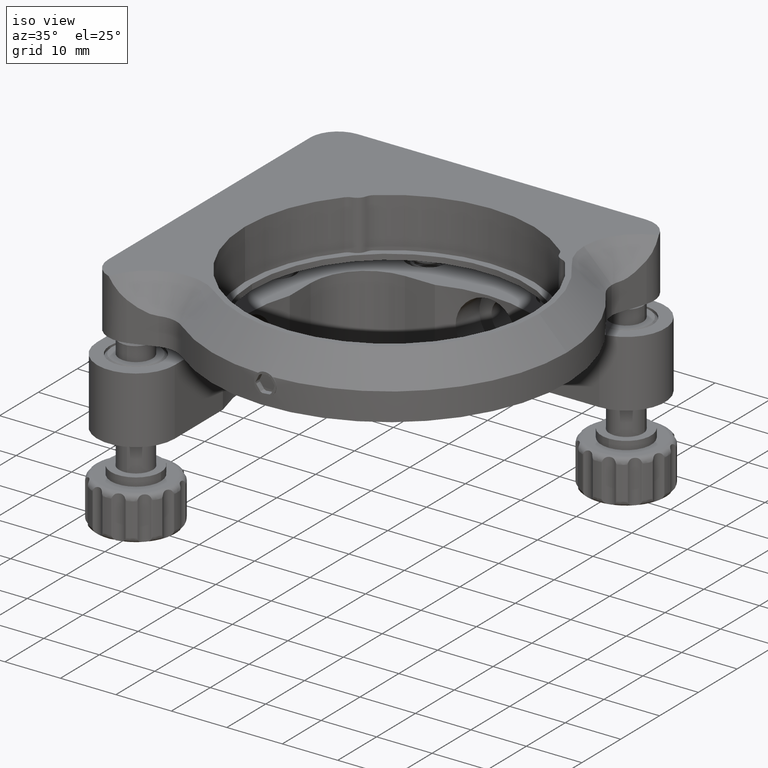
[diagram: clean part render]
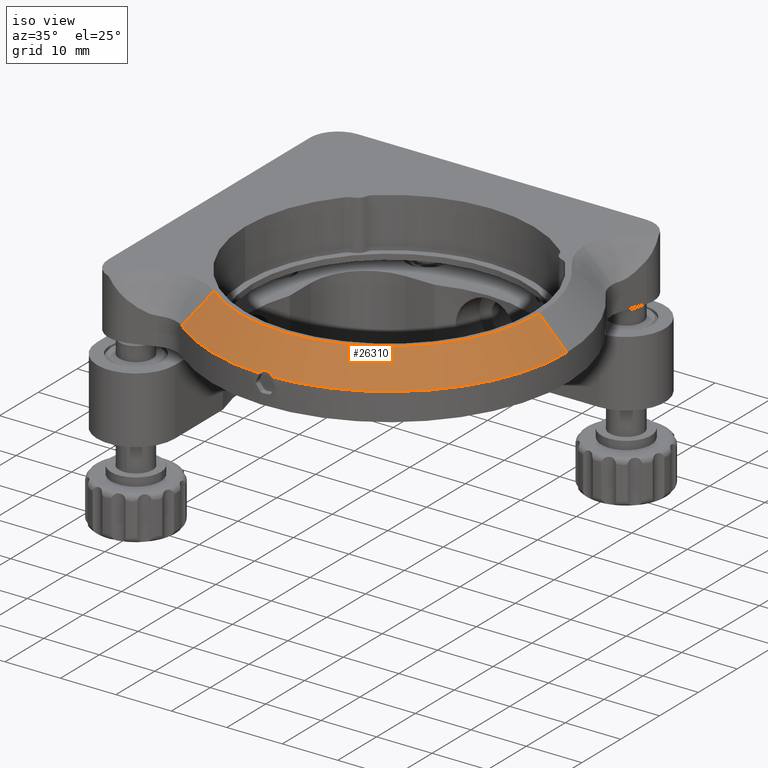
[diagram: same view with one face highlighted and labeled with its STEP entity id]
A machine part, iso view. The second image highlights one B-rep face of the part: STEP entity #26310.
In plain terms, the highlighted conical surface has half-angle 45 deg.
Its self-contained STEP definition (entity closure, byte-faithful):
#39 = CARTESIAN_POINT ( 'NONE',  ( 63.00000000000000000, -31.00000000000003553, 5.000000000000008882 ) ) ;
#466 = CIRCLE ( 'NONE', #19155, 26.99999999999998934 ) ;
#1178 = VERTEX_POINT ( 'NONE', #4838 ) ;
#1435 = VERTEX_POINT ( 'NONE', #11555 ) ;
#2321 = EDGE_CURVE ( 'NONE', #16656, #1178, #15640, .T. ) ;
#3512 = DIRECTION ( 'NONE',  ( 0.7071067811865489050, 5.929982888415629713E-16, -0.7071067811865461294 ) ) ;
#3544 = CARTESIAN_POINT ( 'NONE',  ( 11.00953568832658114, -55.98762366860277240, 5.000000000000008882 ) ) ;
#3547 = CARTESIAN_POINT ( 'NONE',  ( 31.68738635424329075, -62.99261633564857732, 5.000000000000006217 ) ) ;
#3584 = CARTESIAN_POINT ( 'NONE',  ( 14.13304573702555089, -52.08330747038358766, 10.00000000000000533 ) ) ;
#4819 = CARTESIAN_POINT ( 'NONE',  ( 31.24206232633061120, -62.86280235420593954, 5.136489337865904226 ) ) ;
#4838 = CARTESIAN_POINT ( 'NONE',  ( 31.68738635424329075, -62.99261633564857732, 5.000000000000006217 ) ) ;
#5172 = CARTESIAN_POINT ( 'NONE',  ( 30.41569909066186739, -62.94758061895133494, 5.047239685432653111 ) ) ;
#5388 = EDGE_CURVE ( 'NONE', #1178, #32897, #10894, .T. ) ;
#6847 = VERTEX_POINT ( 'NONE', #26128 ) ;
#7528 = CARTESIAN_POINT ( 'NONE',  ( 30.99999999999995737, -62.85000000000007248, 5.149999999999989697 ) ) ;
#7693 = CIRCLE ( 'NONE', #21171, 32.00000000000000000 ) ;
#7871 = DIRECTION ( 'NONE',  ( -1.000000000000000000, 1.084202172485504434E-16, 2.168404344971008868E-16 ) ) ;
#8202 = EDGE_CURVE ( 'NONE', #1435, #32137, #17869, .T. ) ;
#8733 = VECTOR ( 'NONE', #23555, 1000.000000000000114 ) ;
#8770 = CARTESIAN_POINT ( 'NONE',  ( 30.31261364575586725, -62.99261633564866258, 5.000000000002163603 ) ) ;
#9298 = EDGE_LOOP ( 'NONE', ( #16503, #30655, #12349, #34628, #11287, #27173, #14609 ) ) ;
#9333 = EDGE_CURVE ( 'NONE', #1435, #6847, #466, .T. ) ;
#10469 = CARTESIAN_POINT ( 'NONE',  ( 30.87953148293807359, -62.85000000000005826, 5.149999999999989697 ) ) ;
#10607 = DIRECTION ( 'NONE',  ( 1.772866405933790834E-16, 8.922568092179399976E-17, -1.000000000000000000 ) ) ;
#10783 = FACE_OUTER_BOUND ( 'NONE', #9298, .T. ) ;
#10894 = B_SPLINE_CURVE_WITH_KNOTS ( 'NONE', 3,
 ( #3547, #32310, #18911, #4819, #13391, #32660 ),
 .UNSPECIFIED., .F., .F.,
 ( 4, 2, 4 ),
 ( 8.673617379884034509E-19, 0.0003626264195486000787, 0.0007252528390971893155 ),
 .UNSPECIFIED. ) ;
#11154 = DIRECTION ( 'NONE',  ( -1.000000000000000000, -2.493664996716660198E-15, 2.168404344971008868E-16 ) ) ;
#11287 = ORIENTED_EDGE ( 'NONE', *, *, #30580, .F. ) ;
#11555 = CARTESIAN_POINT ( 'NONE',  ( 14.13304573702554734, -52.08330747038359476, 10.00000000000000533 ) ) ;
#12349 = ORIENTED_EDGE ( 'NONE', *, *, #8202, .T. ) ;
#13391 = CARTESIAN_POINT ( 'NONE',  ( 31.12087623696104188, -62.85000000000005826, 5.149999999999987921 ) ) ;
#13406 = CARTESIAN_POINT ( 'NONE',  ( 30.99999999999995737, -62.85000000000007248, 5.149999999999989697 ) ) ;
#14609 = ORIENTED_EDGE ( 'NONE', *, *, #2321, .F. ) ;
#15282 = B_SPLINE_CURVE_WITH_KNOTS ( 'NONE', 3,
 ( #7528, #10469, #27672, #24948, #5172, #19257 ),
 .UNSPECIFIED., .F., .F.,
 ( 4, 2, 4 ),
 ( 0.0007252528390971893155, 0.001086656106676932342, 0.001448059374256675368 ),
 .UNSPECIFIED. ) ;
#15640 = CIRCLE ( 'NONE', #36115, 32.00000000000000000 ) ;
#15713 = EDGE_CURVE ( 'NONE', #6847, #16656, #29176, .T. ) ;
#15747 = DIRECTION ( 'NONE',  ( -1.000000000000000000, -7.709882115452479153E-16, 1.927470528863119788E-16 ) ) ;
#16503 = ORIENTED_EDGE ( 'NONE', *, *, #15713, .F. ) ;
#16656 = VERTEX_POINT ( 'NONE', #39 ) ;
#17869 = LINE ( 'NONE', #3584, #8733 ) ;
#18911 = CARTESIAN_POINT ( 'NONE',  ( 31.47463187450447819, -62.91193655783521166, 5.084744807999610927 ) ) ;
#19155 = AXIS2_PLACEMENT_3D ( 'NONE', #35188, #30045, #15747 ) ;
#19257 = CARTESIAN_POINT ( 'NONE',  ( 30.31261364575586725, -62.99261633564866258, 5.000000000002163603 ) ) ;
#21171 = AXIS2_PLACEMENT_3D ( 'NONE', #27484, #21637, #7871 ) ;
#21637 = DIRECTION ( 'NONE',  ( 1.772866405933790834E-16, 8.922568092179399976E-17, -1.000000000000000000 ) ) ;
#23555 = DIRECTION ( 'NONE',  ( -0.4417310273078717264, -0.5521536919314524727, -0.7071067811865467956 ) ) ;
#24731 = DIRECTION ( 'NONE',  ( 1.000000000000000000, 7.589415207398531038E-16, -2.168404344971008868E-16 ) ) ;
#24935 = DIRECTION ( 'NONE',  ( 1.772866405933790834E-16, 8.922568092179399976E-17, -1.000000000000000000 ) ) ;
#24948 = CARTESIAN_POINT ( 'NONE',  ( 30.52698400573230586, -62.91155336393813968, 5.085148238916642249 ) ) ;
#25291 = VERTEX_POINT ( 'NONE', #8770 ) ;
#26128 = CARTESIAN_POINT ( 'NONE',  ( 58.00000000000000711, -31.00000000000003553, 9.999999999999998224 ) ) ;
#26310 = ADVANCED_FACE ( 'NONE', ( #10783 ), #34186, .T. ) ;
#27173 = ORIENTED_EDGE ( 'NONE', *, *, #5388, .F. ) ;
#27484 = CARTESIAN_POINT ( 'NONE',  ( 31.00000000000001776, -31.00000000000006040, 5.000000000000002665 ) ) ;
#27672 = CARTESIAN_POINT ( 'NONE',  ( 30.75749433595987981, -62.86293804213786984, 5.136346562645586644 ) ) ;
#27896 = VECTOR ( 'NONE', #3512, 1000.000000000000114 ) ;
#28618 = CARTESIAN_POINT ( 'NONE',  ( 63.00000000000001421, -31.00000000000003553, 4.999999999999995559 ) ) ;
#29176 = LINE ( 'NONE', #28618, #27896 ) ;
#30045 = DIRECTION ( 'NONE',  ( -1.772866405933790834E-16, -8.922568092179399976E-17, 1.000000000000000000 ) ) ;
#30112 = AXIS2_PLACEMENT_3D ( 'NONE', #35734, #10607, #24731 ) ;
#30580 = EDGE_CURVE ( 'NONE', #32897, #25291, #15282, .T. ) ;
#30655 = ORIENTED_EDGE ( 'NONE', *, *, #9333, .F. ) ;
#32137 = VERTEX_POINT ( 'NONE', #3544 ) ;
#32310 = CARTESIAN_POINT ( 'NONE',  ( 31.58402138996875408, -62.94745850321387337, 5.047367777299451852 ) ) ;
#32660 = CARTESIAN_POINT ( 'NONE',  ( 30.99999999999995737, -62.85000000000007248, 5.149999999999989697 ) ) ;
#32897 = VERTEX_POINT ( 'NONE', #13406 ) ;
#34186 = CONICAL_SURFACE ( 'NONE', #30112, 32.00000000000000000, 0.7853981633974503884 ) ;
#34319 = EDGE_CURVE ( 'NONE', #25291, #32137, #7693, .T. ) ;
#34628 = ORIENTED_EDGE ( 'NONE', *, *, #34319, .F. ) ;
#35188 = CARTESIAN_POINT ( 'NONE',  ( 31.00000000000001776, -31.00000000000006040, 9.999999999999992895 ) ) ;
#35734 = CARTESIAN_POINT ( 'NONE',  ( 31.00000000000001776, -31.00000000000006040, 5.000000000000002665 ) ) ;
#35928 = CARTESIAN_POINT ( 'NONE',  ( 31.00000000000001776, -31.00000000000006040, 5.000000000000002665 ) ) ;
#36115 = AXIS2_PLACEMENT_3D ( 'NONE', #35928, #24935, #11154 ) ;